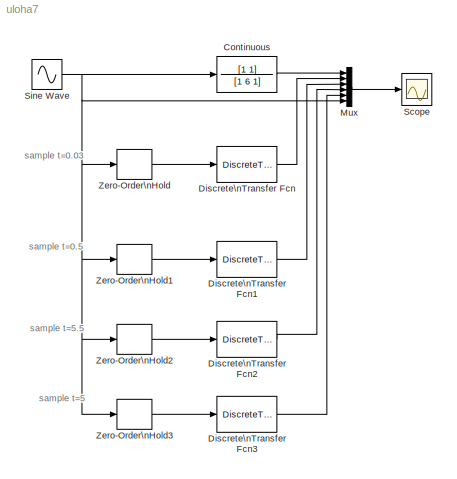
MODEL uloha7
KIND model
BLOCK [TransferFcn] Continuous
  Denominator = [1 6 1]
  Numerator = [1 1]
  SID = 1
BLOCK [DiscreteTransferFcn] Discrete\nTransfer Fcn
  Denominator = [1 -1.834 0.8353]
  Numerator = [0.02787 -0.02705]
  Ports = [1, 1]
  SID = 9
  SampleTime = 0.03
BLOCK [DiscreteTransferFcn] Discrete\nTransfer Fcn1
  Denominator = [1 -0.972 0.04979]
  Numerator = [0.2087 -0.1309]
  Ports = [1, 1]
  SID = 10
  SampleTime = 0.5
BLOCK [DiscreteTransferFcn] Discrete\nTransfer Fcn2
  Denominator = [1 -0.3892 4.667e-15]
  Numerator = [0.6678 -0.057]
  Ports = [1, 1]
  SID = 12
  SampleTime = 5.5
BLOCK [DiscreteTransferFcn] Discrete\nTransfer Fcn3
  Denominator = [1 -0.4241 9.357e-14]
  Numerator = [0.638 -0.0621]
  Ports = [1, 1]
  SID = 15
  SampleTime = 5
BLOCK [Mux] Mux
  DisplayOption = bar
  Inputs = 6
  Ports = [6, 1]
  SID = 2
BLOCK [Scope] Scope
  DataFormat = Array
  Floating = off
  NumInputPorts = 1
  Ports = [1]
  SID = 3
  SampleTime = 0
  SaveName = data
  SaveToWorkspace = on
  ZoomMode = xonly
BLOCK [Sin] Sine Wave
  Amplitude = 1
  Bias = 0
  Frequency = 3.141
  Offset = 0
  Phase = 0
  Ports = [0, 1]
  SID = 4
  SampleTime = 0
  Samples = 1
BLOCK [ZeroOrderHold] Zero-Order\nHold
  SID = 8
  SampleTime = 0.03
BLOCK [ZeroOrderHold] Zero-Order\nHold1
  SID = 11
  SampleTime = 0.5
BLOCK [ZeroOrderHold] Zero-Order\nHold2
  SID = 13
  SampleTime = 5.5
BLOCK [ZeroOrderHold] Zero-Order\nHold3
  SID = 16
  SampleTime = 5
ANNOTATION (root): sample t=0.03
ANNOTATION (root): sample t=0.5
ANNOTATION (root): sample t=5
ANNOTATION (root): sample t=5.5
LINE Continuous:1 -> Mux:1
LINE Discrete\nTransfer Fcn1:1 -> Mux:3
LINE Discrete\nTransfer Fcn2:1 -> Mux:4
LINE Discrete\nTransfer Fcn3:1 -> Mux:5
LINE Discrete\nTransfer Fcn:1 -> Mux:2
LINE Mux:1 -> Scope:1
NET Sine Wave:1 -> Continuous:1, Mux:6, Zero-Order\nHold1:1, Zero-Order\nHold2:1, Zero-Order\nHold3:1, Zero-Order\nHold:1
LINE Zero-Order\nHold1:1 -> Discrete\nTransfer Fcn1:1
LINE Zero-Order\nHold2:1 -> Discrete\nTransfer Fcn2:1
LINE Zero-Order\nHold3:1 -> Discrete\nTransfer Fcn3:1
LINE Zero-Order\nHold:1 -> Discrete\nTransfer Fcn:1
note: NET lines group one-source signal fan-out (src -> all destinations, sorted); 1:1 wires keep LINE
